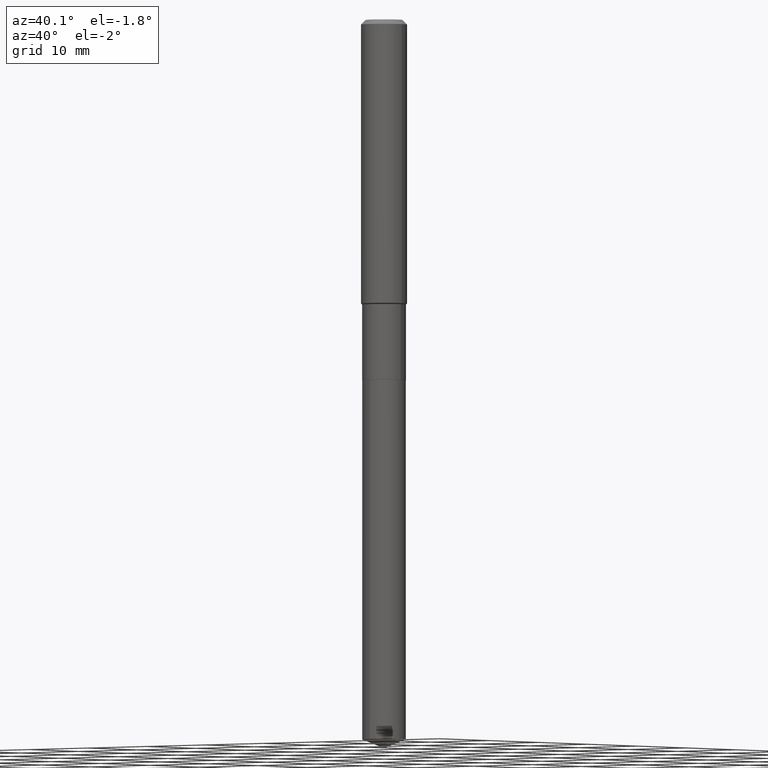
[diagram: clean part render]
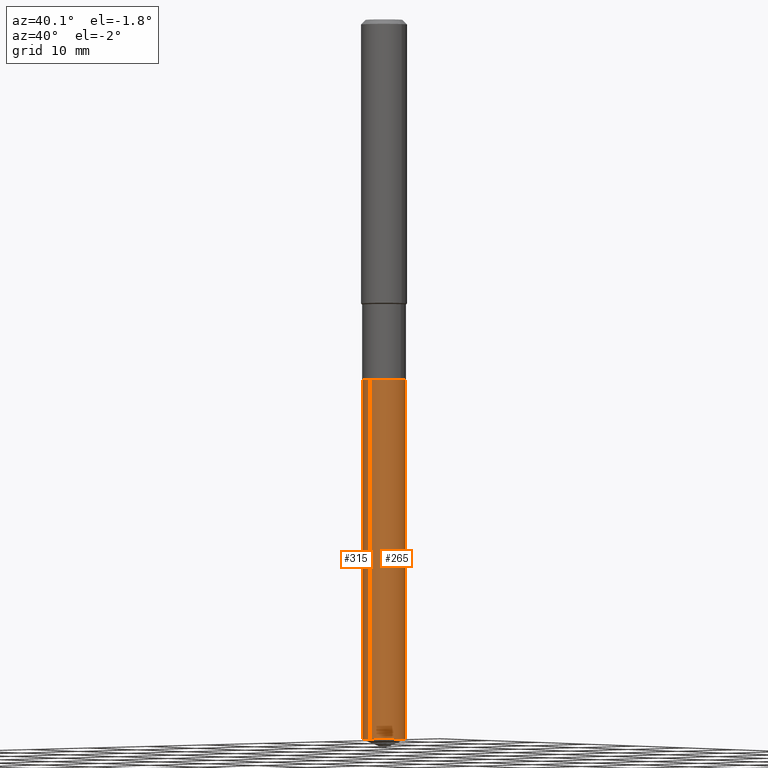
[diagram: same view with one multi-face feature highlighted, each face labeled with its STEP entity id]
A machine part, auxiliary view. The highlighted faces form ONE feature: a constant-radius fillet chain: 2 tangent blend faces with common blend radius 2.8499 mm. The faces share edges in the B-rep.
Their STEP definitions:
[1] entity #315 (Cylinder):
#32 = LINE ( 'NONE', #374, #233 ) ;
#42 = DIRECTION ( 'NONE',  ( -2.445480539169629745E-29, 3.491464536541551464E-15, 1.000000000000000000 ) ) ;
#49 = ORIENTED_EDGE ( 'NONE', *, *, #227, .F. ) ;
#51 = EDGE_CURVE ( 'NONE', #124, #132, #293, .T. ) ;
#54 = EDGE_CURVE ( 'NONE', #90, #280, #32, .T. ) ;
#70 = CARTESIAN_POINT ( 'NONE',  ( -7.834884124363086789E-16, -0.1122000000000129144, -3.696003244636003160 ) ) ;
#88 = ORIENTED_EDGE ( 'NONE', *, *, #136, .T. ) ;
#90 = VERTEX_POINT ( 'NONE', #70 ) ;
#96 = ORIENTED_EDGE ( 'NONE', *, *, #54, .T. ) ;
#124 = VERTEX_POINT ( 'NONE', #476 ) ;
#132 = VERTEX_POINT ( 'NONE', #336 ) ;
#136 = EDGE_CURVE ( 'NONE', #124, #90, #154, .T. ) ;
#142 = CARTESIAN_POINT ( 'NONE',  ( 7.972289495228775295E-16, 0.1121999999999935410, -1.850400000000000489 ) ) ;
#153 = FACE_OUTER_BOUND ( 'NONE', #239, .T. ) ;
#154 = CIRCLE ( 'NONE', #461, 0.1122000000000000081 ) ;
#227 = EDGE_CURVE ( 'NONE', #132, #280, #440, .T. ) ;
#233 = VECTOR ( 'NONE', #438, 39.37007874015748143 ) ;
#239 = EDGE_LOOP ( 'NONE', ( #398, #88, #96, #49 ) ) ;
#263 = DIRECTION ( 'NONE',  ( -6.982962677686265133E-15, -1.000000000000000000, 4.869604266781217263E-15 ) ) ;
#280 = VERTEX_POINT ( 'NONE', #346 ) ;
#293 = LINE ( 'NONE', #142, #486 ) ;
#300 = CYLINDRICAL_SURFACE ( 'NONE', #393, 0.1122000000000000081 ) ;
#315 = ADVANCED_FACE ( 'NONE', ( #153 ), #300, .T. ) ;
#334 = DIRECTION ( 'NONE',  ( -2.445480539169630025E-29, 3.491464536541551464E-15, 1.000000000000000000 ) ) ;
#336 = CARTESIAN_POINT ( 'NONE',  ( 7.972289495229231848E-16, 0.1121999999999935688, -1.850400000000000489 ) ) ;
#342 = DIRECTION ( 'NONE',  ( -6.982962677686265133E-15, -1.000000000000000000, 2.434802133390608632E-15 ) ) ;
#346 = CARTESIAN_POINT ( 'NONE',  ( -7.834884124363538412E-16, -0.1122000000000064612, -1.850400000000000045 ) ) ;
#374 = CARTESIAN_POINT ( 'NONE',  ( -7.834884124363538412E-16, -0.1122000000000064612, -1.850400000000000045 ) ) ;
#377 = AXIS2_PLACEMENT_3D ( 'NONE', #457, #42, #380 ) ;
#380 = DIRECTION ( 'NONE',  ( -6.982962677686265133E-15, -1.000000000000000000, 2.434802133390608632E-15 ) ) ;
#387 = DIRECTION ( 'NONE',  ( -2.445480539169629745E-29, 3.491464536541551464E-15, 1.000000000000000000 ) ) ;
#393 = AXIS2_PLACEMENT_3D ( 'NONE', #421, #387, #342 ) ;
#398 = ORIENTED_EDGE ( 'NONE', *, *, #51, .F. ) ;
#421 = CARTESIAN_POINT ( 'NONE',  ( 4.525095478964977394E-29, -6.460637069395357576E-15, -1.850400000000000267 ) ) ;
#438 = DIRECTION ( 'NONE',  ( -2.445480539169630025E-29, 3.491464536541551464E-15, 1.000000000000000000 ) ) ;
#440 = CIRCLE ( 'NONE', #377, 0.1122000000000000081 ) ;
#442 = DIRECTION ( 'NONE',  ( -2.445480539169629745E-29, 3.491464536541551464E-15, 1.000000000000000000 ) ) ;
#457 = CARTESIAN_POINT ( 'NONE',  ( 4.525095478964977394E-29, -6.460637069395357576E-15, -1.850400000000000267 ) ) ;
#461 = AXIS2_PLACEMENT_3D ( 'NONE', #480, #442, #263 ) ;
#476 = CARTESIAN_POINT ( 'NONE',  ( 7.972289495229227904E-16, 0.1121999999999870878, -3.696003244636004048 ) ) ;
#480 = CARTESIAN_POINT ( 'NONE',  ( 9.038482296750647899E-29, -1.290449534656798549E-14, -3.696003244636003604 ) ) ;
#486 = VECTOR ( 'NONE', #334, 39.37007874015748143 ) ;
[2] entity #265 (Cylinder):
#2 = CARTESIAN_POINT ( 'NONE',  ( 4.525095478964977394E-29, -6.460637069395357576E-15, -1.850400000000000267 ) ) ;
#32 = LINE ( 'NONE', #374, #233 ) ;
#39 = CYLINDRICAL_SURFACE ( 'NONE', #91, 0.1122000000000000081 ) ;
#51 = EDGE_CURVE ( 'NONE', #124, #132, #293, .T. ) ;
#53 = ORIENTED_EDGE ( 'NONE', *, *, #133, .T. ) ;
#54 = EDGE_CURVE ( 'NONE', #90, #280, #32, .T. ) ;
#70 = CARTESIAN_POINT ( 'NONE',  ( -7.834884124363086789E-16, -0.1122000000000129144, -3.696003244636003160 ) ) ;
#71 = FACE_OUTER_BOUND ( 'NONE', #275, .T. ) ;
#78 = DIRECTION ( 'NONE',  ( -6.982962677686265133E-15, -1.000000000000000000, 2.434802133390608632E-15 ) ) ;
#90 = VERTEX_POINT ( 'NONE', #70 ) ;
#91 = AXIS2_PLACEMENT_3D ( 'NONE', #2, #191, #78 ) ;
#105 = DIRECTION ( 'NONE',  ( -6.982962677686265133E-15, -1.000000000000000000, 4.869604266781217263E-15 ) ) ;
#124 = VERTEX_POINT ( 'NONE', #476 ) ;
#132 = VERTEX_POINT ( 'NONE', #336 ) ;
#133 = EDGE_CURVE ( 'NONE', #90, #124, #207, .T. ) ;
#142 = CARTESIAN_POINT ( 'NONE',  ( 7.972289495228775295E-16, 0.1121999999999935410, -1.850400000000000489 ) ) ;
#172 = CIRCLE ( 'NONE', #291, 0.1122000000000000081 ) ;
#191 = DIRECTION ( 'NONE',  ( -2.445480539169629745E-29, 3.491464536541551464E-15, 1.000000000000000000 ) ) ;
#202 = ORIENTED_EDGE ( 'NONE', *, *, #366, .F. ) ;
#207 = CIRCLE ( 'NONE', #272, 0.1122000000000000081 ) ;
#219 = CARTESIAN_POINT ( 'NONE',  ( 9.038482296750647899E-29, -1.290449534656798549E-14, -3.696003244636003604 ) ) ;
#220 = DIRECTION ( 'NONE',  ( -2.445480539169629745E-29, 3.491464536541551464E-15, 1.000000000000000000 ) ) ;
#233 = VECTOR ( 'NONE', #438, 39.37007874015748143 ) ;
#265 = ADVANCED_FACE ( 'NONE', ( #71 ), #39, .T. ) ;
#272 = AXIS2_PLACEMENT_3D ( 'NONE', #219, #220, #105 ) ;
#275 = EDGE_LOOP ( 'NONE', ( #53, #286, #202, #463 ) ) ;
#280 = VERTEX_POINT ( 'NONE', #346 ) ;
#286 = ORIENTED_EDGE ( 'NONE', *, *, #51, .T. ) ;
#291 = AXIS2_PLACEMENT_3D ( 'NONE', #383, #302, #381 ) ;
#293 = LINE ( 'NONE', #142, #486 ) ;
#302 = DIRECTION ( 'NONE',  ( -2.445480539169629745E-29, 3.491464536541551464E-15, 1.000000000000000000 ) ) ;
#334 = DIRECTION ( 'NONE',  ( -2.445480539169630025E-29, 3.491464536541551464E-15, 1.000000000000000000 ) ) ;
#336 = CARTESIAN_POINT ( 'NONE',  ( 7.972289495229231848E-16, 0.1121999999999935688, -1.850400000000000489 ) ) ;
#346 = CARTESIAN_POINT ( 'NONE',  ( -7.834884124363538412E-16, -0.1122000000000064612, -1.850400000000000045 ) ) ;
#366 = EDGE_CURVE ( 'NONE', #280, #132, #172, .T. ) ;
#374 = CARTESIAN_POINT ( 'NONE',  ( -7.834884124363538412E-16, -0.1122000000000064612, -1.850400000000000045 ) ) ;
#381 = DIRECTION ( 'NONE',  ( -6.982962677686265133E-15, -1.000000000000000000, 2.434802133390608632E-15 ) ) ;
#383 = CARTESIAN_POINT ( 'NONE',  ( 4.525095478964977394E-29, -6.460637069395357576E-15, -1.850400000000000267 ) ) ;
#438 = DIRECTION ( 'NONE',  ( -2.445480539169630025E-29, 3.491464536541551464E-15, 1.000000000000000000 ) ) ;
#463 = ORIENTED_EDGE ( 'NONE', *, *, #54, .F. ) ;
#476 = CARTESIAN_POINT ( 'NONE',  ( 7.972289495229227904E-16, 0.1121999999999870878, -3.696003244636004048 ) ) ;
#486 = VECTOR ( 'NONE', #334, 39.37007874015748143 ) ;